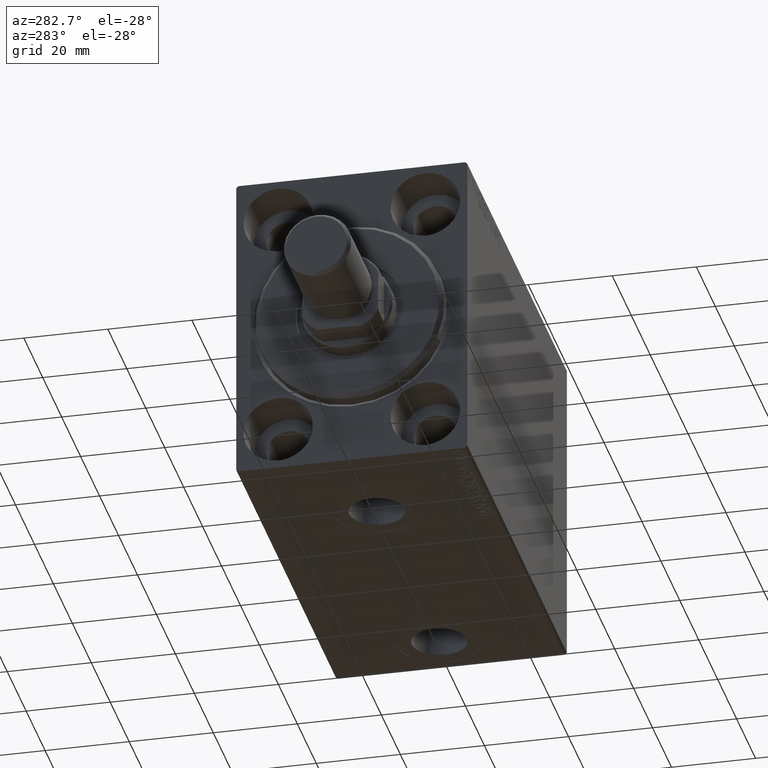
[diagram: clean part render]
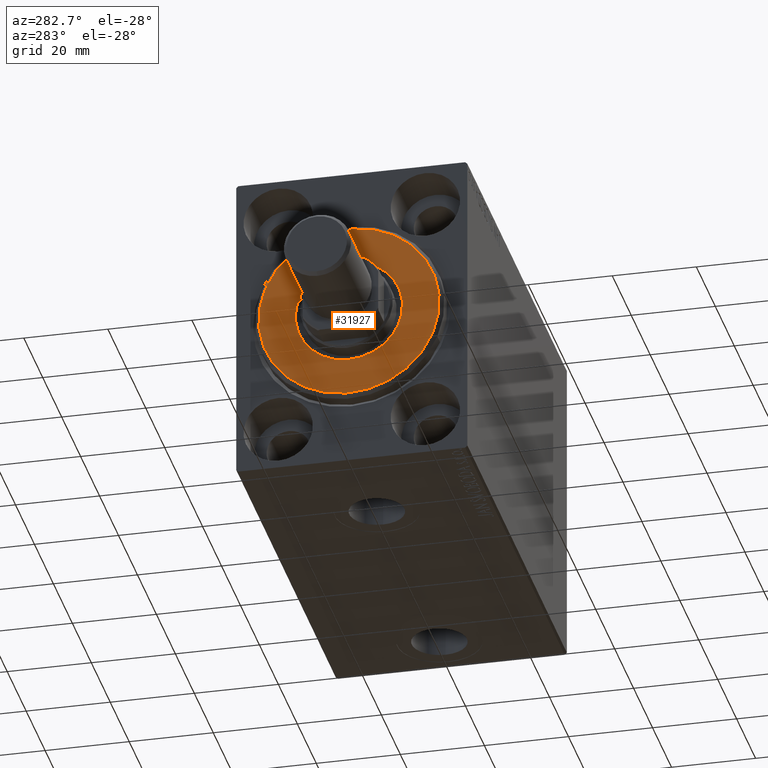
[diagram: same view with one face highlighted and labeled with its STEP entity id]
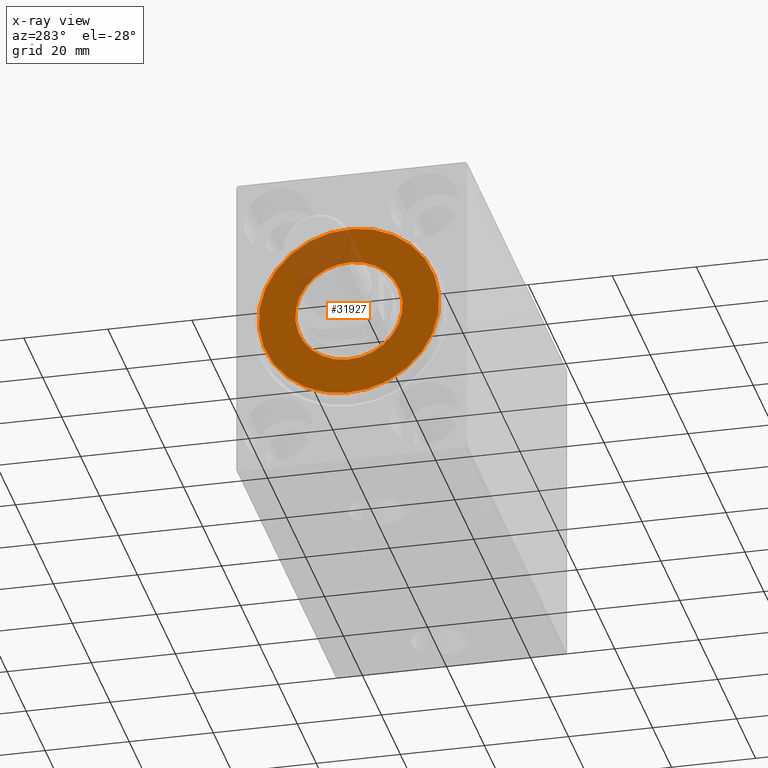
[diagram: x-ray of the same camera — body ghosted, the highlighted face saturated]
A machine part, auxiliary view. The second image highlights one B-rep face of the part: STEP entity #31927.
The next image is the same camera in x-ray: the body ghosted, the highlighted face saturated — about 16% of this face is hidden behind the body in this view.
In plain terms, the highlighted planar face has unit normal (-1, 0, 0).
Its self-contained STEP definition (entity closure, byte-faithful):
#1137 = AXIS2_PLACEMENT_3D ( 'NONE', #3993, #43977, #26915 ) ;
#1194 = CIRCLE ( 'NONE', #10577, 12.75000000000000000 ) ;
#1958 = AXIS2_PLACEMENT_3D ( 'NONE', #37131, #22553, #40485 ) ;
#3774 = FACE_OUTER_BOUND ( 'NONE', #30918, .T. ) ;
#3817 = DIRECTION ( 'NONE',  ( 0.000000000000000000, 0.000000000000000000, -1.000000000000000000 ) ) ;
#3993 = CARTESIAN_POINT ( 'NONE',  ( 3.000000000000000000, 0.000000000000000000, 0.000000000000000000 ) ) ;
#6326 = DIRECTION ( 'NONE',  ( 1.000000000000000000, -0.000000000000000000, 0.000000000000000000 ) ) ;
#7050 = EDGE_CURVE ( 'NONE', #20962, #43956, #1194, .T. ) ;
#7607 = EDGE_CURVE ( 'NONE', #43956, #20962, #23495, .T. ) ;
#7842 = CARTESIAN_POINT ( 'NONE',  ( 3.000000000000000000, 0.000000000000000000, 0.000000000000000000 ) ) ;
#8514 = CIRCLE ( 'NONE', #14283, 21.50000000000000355 ) ;
#10577 = AXIS2_PLACEMENT_3D ( 'NONE', #42717, #25878, #36208 ) ;
#13452 = FACE_BOUND ( 'NONE', #21059, .T. ) ;
#13975 = CARTESIAN_POINT ( 'NONE',  ( 3.000000000000000000, 1.561424668912874914E-15, -12.75000000000000000 ) ) ;
#14283 = AXIS2_PLACEMENT_3D ( 'NONE', #26320, #6326, #26096 ) ;
#17531 = CARTESIAN_POINT ( 'NONE',  ( 3.000000000000000000, 2.694222958124177598E-15, -21.50000000000000355 ) ) ;
#17727 = PLANE ( 'NONE',  #1137 ) ;
#19235 = VERTEX_POINT ( 'NONE', #17531 ) ;
#20962 = VERTEX_POINT ( 'NONE', #13975 ) ;
#21059 = EDGE_LOOP ( 'NONE', ( #40808, #32574 ) ) ;
#22553 = DIRECTION ( 'NONE',  ( -1.000000000000000000, 0.000000000000000000, -0.000000000000000000 ) ) ;
#23495 = CIRCLE ( 'NONE', #1958, 12.75000000000000000 ) ;
#25878 = DIRECTION ( 'NONE',  ( -1.000000000000000000, 0.000000000000000000, -0.000000000000000000 ) ) ;
#26096 = DIRECTION ( 'NONE',  ( 0.000000000000000000, 0.000000000000000000, -1.000000000000000000 ) ) ;
#26320 = CARTESIAN_POINT ( 'NONE',  ( 3.000000000000000000, 0.000000000000000000, 0.000000000000000000 ) ) ;
#26915 = DIRECTION ( 'NONE',  ( 0.000000000000000000, 0.000000000000000000, -1.000000000000000000 ) ) ;
#28512 = DIRECTION ( 'NONE',  ( 1.000000000000000000, -0.000000000000000000, 0.000000000000000000 ) ) ;
#29569 = EDGE_CURVE ( 'NONE', #19235, #42745, #44124, .T. ) ;
#30918 = EDGE_LOOP ( 'NONE', ( #39487, #39931 ) ) ;
#31927 = ADVANCED_FACE ( 'NONE', ( #3774, #13452 ), #17727, .T. ) ;
#32574 = ORIENTED_EDGE ( 'NONE', *, *, #7050, .T. ) ;
#36208 = DIRECTION ( 'NONE',  ( 0.000000000000000000, 0.000000000000000000, -1.000000000000000000 ) ) ;
#37131 = CARTESIAN_POINT ( 'NONE',  ( 3.000000000000000000, 0.000000000000000000, 0.000000000000000000 ) ) ;
#39487 = ORIENTED_EDGE ( 'NONE', *, *, #40200, .T. ) ;
#39931 = ORIENTED_EDGE ( 'NONE', *, *, #29569, .T. ) ;
#40200 = EDGE_CURVE ( 'NONE', #42745, #19235, #8514, .T. ) ;
#40485 = DIRECTION ( 'NONE',  ( 0.000000000000000000, 0.000000000000000000, -1.000000000000000000 ) ) ;
#40808 = ORIENTED_EDGE ( 'NONE', *, *, #7607, .T. ) ;
#42717 = CARTESIAN_POINT ( 'NONE',  ( 3.000000000000000000, 0.000000000000000000, 0.000000000000000000 ) ) ;
#42745 = VERTEX_POINT ( 'NONE', #44251 ) ;
#43391 = AXIS2_PLACEMENT_3D ( 'NONE', #7842, #28512, #3817 ) ;
#43956 = VERTEX_POINT ( 'NONE', #44146 ) ;
#43977 = DIRECTION ( 'NONE',  ( 1.000000000000000000, -0.000000000000000000, 0.000000000000000000 ) ) ;
#44124 = CIRCLE ( 'NONE', #43391, 21.50000000000000355 ) ;
#44146 = CARTESIAN_POINT ( 'NONE',  ( 3.000000000000000000, 0.000000000000000000, 12.75000000000000000 ) ) ;
#44251 = CARTESIAN_POINT ( 'NONE',  ( 3.000000000000000000, 0.000000000000000000, 21.50000000000000355 ) ) ;